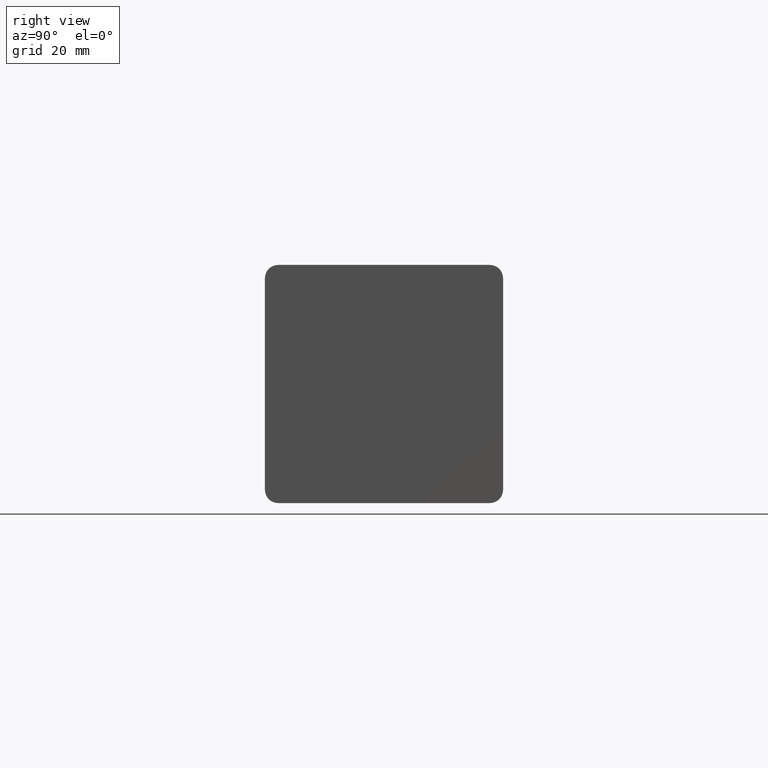
[diagram: clean part render]
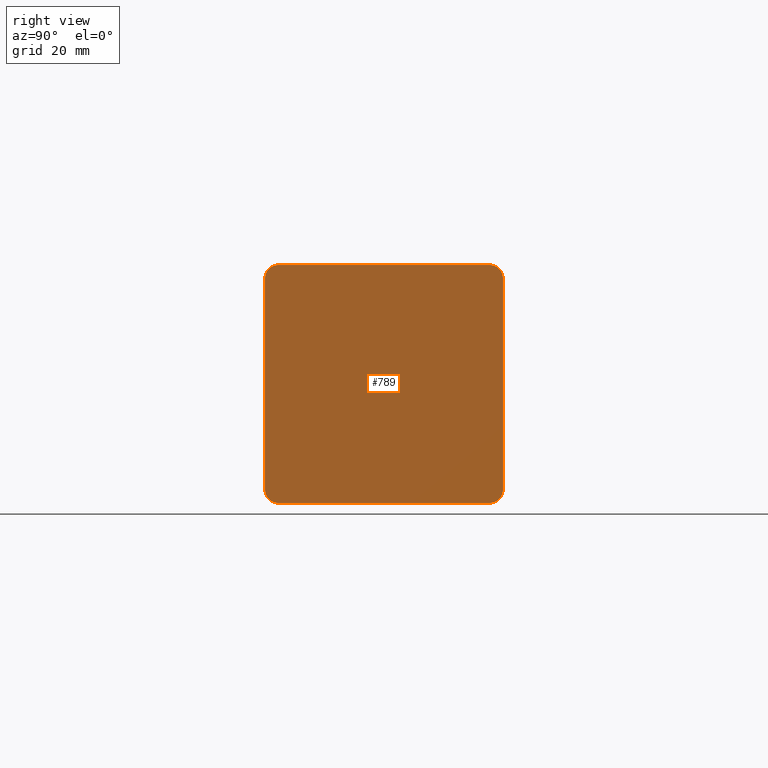
[diagram: same view with one face highlighted and labeled with its STEP entity id]
A machine part, right view. The second image highlights one B-rep face of the part: STEP entity #789.
In plain terms, the highlighted planar face has unit normal (1, 0, 0).
Its self-contained STEP definition (entity closure, byte-faithful):
#789=ADVANCED_FACE('',(#1219),#3935,.T.);
#1219=FACE_OUTER_BOUND('',#1664,.F.);
#1664=EDGE_LOOP('',(#3171,#3172,#3173,#3174,#3175,#3176,#3177,#3178));
#3171=ORIENTED_EDGE('',*,*,#6250,.T.);
#3172=ORIENTED_EDGE('',*,*,#6239,.F.);
#3173=ORIENTED_EDGE('',*,*,#6253,.T.);
#3174=ORIENTED_EDGE('',*,*,#6243,.F.);
#3175=ORIENTED_EDGE('',*,*,#6252,.T.);
#3176=ORIENTED_EDGE('',*,*,#6235,.F.);
#3177=ORIENTED_EDGE('',*,*,#6251,.T.);
#3178=ORIENTED_EDGE('',*,*,#6247,.F.);
#3935=PLANE('',#8811);
#5263=CIRCLE('',#8384,2.25);
#5265=CIRCLE('',#8386,2.25);
#5267=CIRCLE('',#8388,2.25);
#5269=CIRCLE('',#8390,2.25);
#6235=EDGE_CURVE('',#7375,#7374,#5263,.T.);
#6239=EDGE_CURVE('',#7371,#7370,#5265,.T.);
#6243=EDGE_CURVE('',#7367,#7366,#5267,.T.);
#6247=EDGE_CURVE('',#7363,#7362,#5269,.T.);
#6250=EDGE_CURVE('',#7363,#7370,#6834,.T.);
#6251=EDGE_CURVE('',#7375,#7362,#6835,.T.);
#6252=EDGE_CURVE('',#7367,#7374,#6836,.T.);
#6253=EDGE_CURVE('',#7371,#7366,#6837,.T.);
#6834=LINE('',#12869,#7282);
#6835=LINE('',#12870,#7283);
#6836=LINE('',#12871,#7284);
#6837=LINE('',#12872,#7285);
#7282=VECTOR('',#10243,36.);
#7283=VECTOR('',#10244,36.);
#7284=VECTOR('',#10245,36.);
#7285=VECTOR('',#10246,35.9999999999999);
#7362=VERTEX_POINT('',#11461);
#7363=VERTEX_POINT('',#11462);
#7366=VERTEX_POINT('',#11465);
#7367=VERTEX_POINT('',#11466);
#7370=VERTEX_POINT('',#11469);
#7371=VERTEX_POINT('',#11470);
#7374=VERTEX_POINT('',#11473);
#7375=VERTEX_POINT('',#11474);
#8384=AXIS2_PLACEMENT_3D('',#12854,#10221,#10222);
#8386=AXIS2_PLACEMENT_3D('',#12858,#10227,#10228);
#8388=AXIS2_PLACEMENT_3D('',#12862,#10233,#10234);
#8390=AXIS2_PLACEMENT_3D('',#12866,#10239,#10240);
#8811=AXIS2_PLACEMENT_3D('',#13329,#11123,#11124);
#10221=DIRECTION('',(1.,0.,0.));
#10222=DIRECTION('',(0.,0.,1.));
#10227=DIRECTION('',(1.,0.,0.));
#10228=DIRECTION('',(0.,0.,-1.));
#10233=DIRECTION('',(1.,0.,0.));
#10234=DIRECTION('',(0.,-1.,0.));
#10239=DIRECTION('',(1.,0.,0.));
#10240=DIRECTION('',(0.,1.,0.));
#10243=DIRECTION('',(0.,0.,-1.));
#10244=DIRECTION('',(0.,1.,0.));
#10245=DIRECTION('',(0.,0.,1.));
#10246=DIRECTION('',(0.,-1.,0.));
#11123=DIRECTION('',(1.,0.,0.));
#11124=DIRECTION('',(0.,-1.,0.));
#11461=CARTESIAN_POINT('',(76.8649997447654,-181.999995498775,56.2500072097393));
#11462=CARTESIAN_POINT('',(76.8649997447654,-179.749995498775,54.0000072097393));
#11465=CARTESIAN_POINT('',(76.8649997447655,-217.999995498775,15.7500072097393));
#11466=CARTESIAN_POINT('',(76.8649997447655,-220.249995498775,18.0000072097393));
#11469=CARTESIAN_POINT('',(76.8649997447655,-179.749995498775,18.0000072097393));
#11470=CARTESIAN_POINT('',(76.8649997447654,-181.999995498775,15.7500072097393));
#11473=CARTESIAN_POINT('',(76.8649997447654,-220.249995498775,54.0000072097393));
#11474=CARTESIAN_POINT('',(76.8649997447654,-217.999995498775,56.2500072097393));
#12854=CARTESIAN_POINT('',(76.8649997447654,-217.999995498774,54.0000072097393));
#12858=CARTESIAN_POINT('',(76.8649997447654,-181.999995498775,18.0000072097393));
#12862=CARTESIAN_POINT('',(76.8649997447654,-217.999995498775,18.0000072097392));
#12866=CARTESIAN_POINT('',(76.8649997447654,-181.999995498775,54.0000072097393));
#12869=CARTESIAN_POINT('',(76.8649997447654,-179.749995498775,54.0000072097393));
#12870=CARTESIAN_POINT('',(76.8649997447654,-217.999995498775,56.2500072097393));
#12871=CARTESIAN_POINT('',(76.8649997447654,-220.249995498775,18.0000072097393));
#12872=CARTESIAN_POINT('',(76.8649997447654,-181.999995498775,15.7500072097393));
#13329=CARTESIAN_POINT('',(76.8649997447654,-179.344995498775,56.6550072097393));